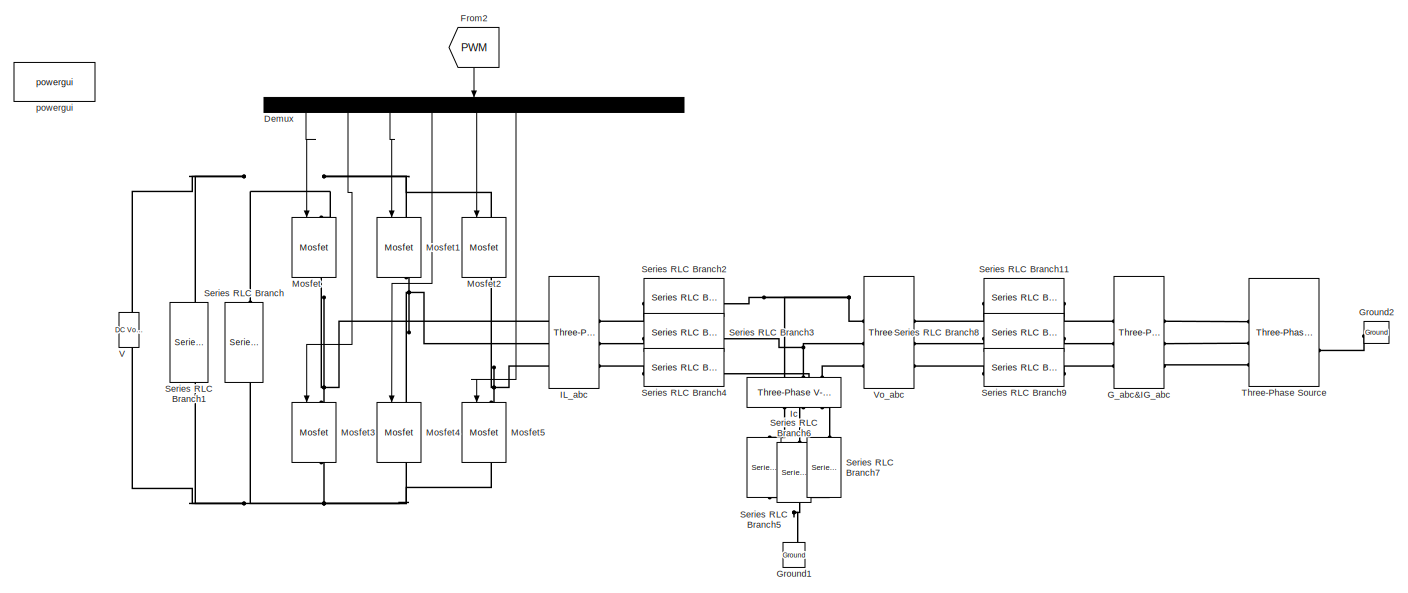
[diagram: root canvas - part 1/3, full width, top band]
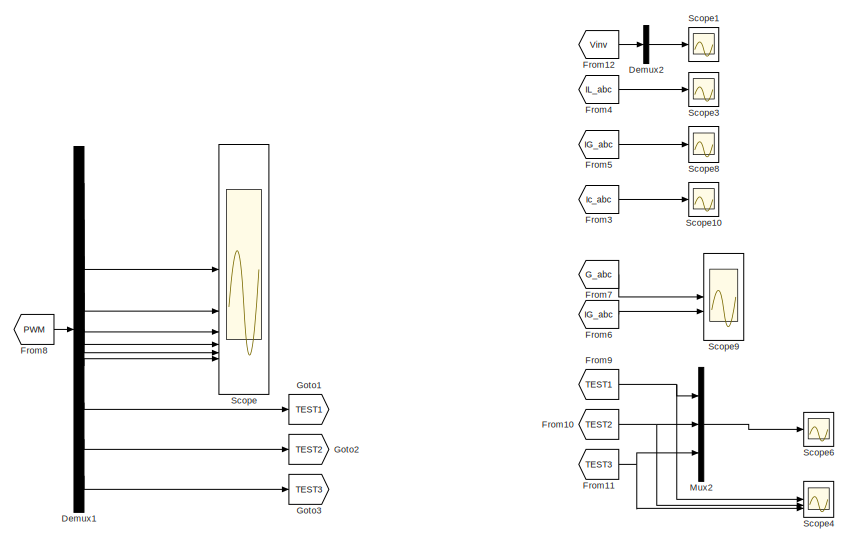
[diagram: root canvas - part 2/3, bottom right region]
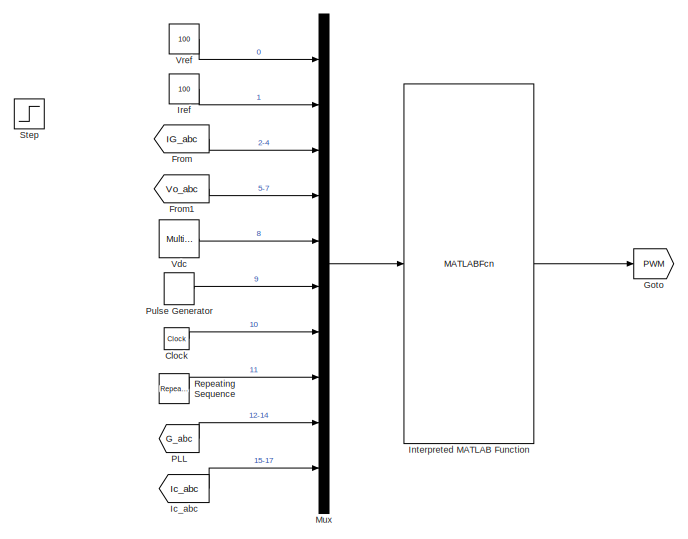
[diagram: root canvas - part 3/3, bottom left region]
MODEL slx_1745cb2871dc
KIND model
CONFIG AbsTol = auto
CONFIG EnableMultiTasking = off
CONFIG FixedStep = 1e-6
CONFIG InitFcn = f = 10e3;\nTs = 1/f;\nVdc = 850;\nL1 = 0.9e-3;\nC = 40e-6;\nR = 0.1;\nL2 = 0.1e-3;\nRC = 0.01;
CONFIG MaxStep = auto
CONFIG MinStep = auto
CONFIG RelTol = 1e-3
CONFIG SampleTimeConstraint = Unconstrained
CONFIG SolverName = FixedStepDiscrete
CONFIG StartTime = 0.0
CONFIG StopTime = 0.2
BLOCK [Clock] Clock
  DisplayTime = on
BLOCK [Demux] Demux
  NameLocation = left
  Outputs = 9
BLOCK [Demux] Demux1
  Outputs = 9
BLOCK [Demux] Demux2
  Outputs = 3
BLOCK [From] From
  GotoTag = IG_abc
  TagVisibility = global
BLOCK [From] From1
  GotoTag = Vo_abc
  TagVisibility = global
BLOCK [From] From10
  GotoTag = TEST2
BLOCK [From] From11
  GotoTag = TEST3
BLOCK [From] From12
  GotoTag = Vinv
  TagVisibility = global
BLOCK [From] From2
  GotoTag = PWM
  NameLocation = left
BLOCK [From] From3
  GotoTag = Ic_abc
  TagVisibility = global
BLOCK [From] From4
  GotoTag = IL_abc
  TagVisibility = global
BLOCK [From] From5
  GotoTag = IG_abc
  TagVisibility = global
BLOCK [From] From6
  GotoTag = IG_abc
  TagVisibility = global
BLOCK [From] From7
  GotoTag = G_abc
  TagVisibility = global
BLOCK [From] From8
  GotoTag = PWM
BLOCK [From] From9
  GotoTag = TEST1
BLOCK [Reference] G_abc&IG_abc  REF=spsThreePhaseVIMeasurementLib/Three-Phase
V-I Measurement
  LibrarySourceBlock = sps_lib/Sensors and Measurements/Three-Phase\nV-I Measurement
  SourceBlock = spsThreePhaseVIMeasurementLib/Three-Phase\nV-I Measurement
  SourceType = Three-Phase VI Measurement
BLOCK [Goto] Goto
  GotoTag = PWM
BLOCK [Goto] Goto1
  GotoTag = TEST1
BLOCK [Goto] Goto2
  GotoTag = TEST2
BLOCK [Goto] Goto3
  GotoTag = TEST3
BLOCK [Reference] Ground1  REF=spsGroundLib/Ground
  LibrarySourceBlock = sps_lib/Utilities/Ground
  NameLocation = right
  SourceBlock = spsGroundLib/Ground
  SourceType = Ground
BLOCK [Reference] Ground2  REF=spsGroundLib/Ground
  LibrarySourceBlock = sps_lib/Utilities/Ground
  NameLocation = top
  SourceBlock = spsGroundLib/Ground
  SourceType = Ground
BLOCK [Reference] IL_abc  REF=spsThreePhaseVIMeasurementLib/Three-Phase
V-I Measurement
  LibrarySourceBlock = sps_lib/Sensors and Measurements/Three-Phase\nV-I Measurement
  SourceBlock = spsThreePhaseVIMeasurementLib/Three-Phase\nV-I Measurement
  SourceType = Three-Phase VI Measurement
BLOCK [Reference] Ic  REF=spsThreePhaseVIMeasurementLib/Three-Phase
V-I Measurement
  LibrarySourceBlock = sps_lib/Sensors and Measurements/Three-Phase\nV-I Measurement
  NameLocation = left
  SourceBlock = spsThreePhaseVIMeasurementLib/Three-Phase\nV-I Measurement
  SourceType = Three-Phase VI Measurement
BLOCK [From] Ic_abc
  GotoTag = Ic_abc
  TagVisibility = global
BLOCK [MATLABFcn] Interpreted MATLAB Function
  MATLABFcn = SPWM_2Closed_loop
  OutputDimensions = 9
BLOCK [Constant] Iref
  Value = 100
BLOCK [Reference] Mosfet  REF=spsMosfetLib/Mosfet
  LibrarySourceBlock = sps_lib/Power Electronics/Mosfet
  NameLocation = left
  SourceBlock = spsMosfetLib/Mosfet
  SourceType = Mosfet
BLOCK [Reference] Mosfet1  REF=spsMosfetLib/Mosfet
  LibrarySourceBlock = sps_lib/Power Electronics/Mosfet
  NameLocation = left
  SourceBlock = spsMosfetLib/Mosfet
  SourceType = Mosfet
BLOCK [Reference] Mosfet2  REF=spsMosfetLib/Mosfet
  LibrarySourceBlock = sps_lib/Power Electronics/Mosfet
  NameLocation = left
  SourceBlock = spsMosfetLib/Mosfet
  SourceType = Mosfet
BLOCK [Reference] Mosfet3  REF=spsMosfetLib/Mosfet
  LibrarySourceBlock = sps_lib/Power Electronics/Mosfet
  NameLocation = left
  SourceBlock = spsMosfetLib/Mosfet
  SourceType = Mosfet
BLOCK [Reference] Mosfet4  REF=spsMosfetLib/Mosfet
  LibrarySourceBlock = sps_lib/Power Electronics/Mosfet
  NameLocation = left
  SourceBlock = spsMosfetLib/Mosfet
  SourceType = Mosfet
BLOCK [Reference] Mosfet5  REF=spsMosfetLib/Mosfet
  LibrarySourceBlock = sps_lib/Power Electronics/Mosfet
  NameLocation = left
  SourceBlock = spsMosfetLib/Mosfet
  SourceType = Mosfet
BLOCK [Mux] Mux
  DisplayOption = bar
  Inputs = 10
BLOCK [Mux] Mux2
  DisplayOption = bar
  Inputs = 3
BLOCK [From] PLL
  GotoTag = G_abc
  TagVisibility = global
BLOCK [DiscretePulseGenerator] Pulse Generator
  Period = Ts
  PulseType = Time based
  PulseWidth = 50
BLOCK [Reference] Repeating Sequence  REF=simulink/Sources/Repeating
Sequence
  SourceBlock = simulink/Sources/Repeating\nSequence
  SourceType = Repeating table
BLOCK [Scope] Scope
  Floating = off
  NumInputPorts = 6
  ScopeSpecificationString = Simulink.scopes.TimeScopeBlockCfg('CurrentConfiguration', extmgr.ConfigurationSet(extmgr.Configuration('Core','General UI',true),extmgr.Configuration('Core','Source UI',true),extmgr.Configuration('Sources','WiredSimulink',true),extmgr.Configuration('Visuals','Time Domain',true,'SerializedDisplays',{struct('MinYLimReal','-0.125','MaxYLimReal','1.125','YLabelReal','','MinYLimMag','0.00000','MaxYLimM...<+4768ch>
BLOCK [Scope] Scope1
  Floating = off
  NumInputPorts = 1
  ScopeSpecificationString = Simulink.scopes.TimeScopeBlockCfg('CurrentConfiguration', extmgr.ConfigurationSet(extmgr.Configuration('Core','General UI',true,'FigureColor',[0 0 0]),extmgr.Configuration('Core','Source UI',true),extmgr.Configuration('Sources','WiredSimulink',true,'DataLoggingVariableName','ScopeData1'),extmgr.Configuration('Visuals','Time Domain',true,'SerializedDisplays',{struct('MinYLimReal','-1062.89834','Max...<+1859ch>
BLOCK [Scope] Scope10
  Floating = off
  NumInputPorts = 1
  ScopeSpecificationString = Simulink.scopes.TimeScopeBlockCfg('CurrentConfiguration', extmgr.ConfigurationSet(extmgr.Configuration('Core','General UI',true,'FigureColor',[0 0 0]),extmgr.Configuration('Core','Source UI',true),extmgr.Configuration('Sources','WiredSimulink',true,'DataLoggingVariableName','ScopeData1'),extmgr.Configuration('Visuals','Time Domain',true,'SerializedDisplays',{struct('MinYLimReal','-71.71214','MaxYL...<+1850ch>
BLOCK [Scope] Scope3
  Floating = off
  NumInputPorts = 1
  ScopeSpecificationString = Simulink.scopes.TimeScopeBlockCfg('CurrentConfiguration', extmgr.ConfigurationSet(extmgr.Configuration('Core','General UI',true,'FigureColor',[0 0 0]),extmgr.Configuration('Core','Source UI',true),extmgr.Configuration('Sources','WiredSimulink',true,'DataLoggingVariableName','ScopeData1'),extmgr.Configuration('Visuals','Time Domain',true,'SerializedDisplays',{struct('MinYLimReal','-132.0115','MaxYL...<+1859ch>
BLOCK [Scope] Scope4
  Floating = off
  NumInputPorts = 3
  ScopeSpecificationString = Simulink.scopes.TimeScopeBlockCfg('CurrentConfiguration', extmgr.ConfigurationSet(extmgr.Configuration('Core','General UI',true,'FigureColor',[0 0 0]),extmgr.Configuration('Core','Source UI',true),extmgr.Configuration('Sources','WiredSimulink',true,'DataLoggingVariableName','ScopeData5'),extmgr.Configuration('Visuals','Time Domain',true,'SerializedDisplays',{struct('MinYLimReal','-233.36249','MaxY...<+3213ch>
BLOCK [Scope] Scope6
  Floating = off
  NumInputPorts = 1
  ScopeSpecificationString = Simulink.scopes.TimeScopeBlockCfg('CurrentConfiguration', extmgr.ConfigurationSet(extmgr.Configuration('Core','General UI',true,'FigureColor',[0 0 0]),extmgr.Configuration('Core','Source UI',true),extmgr.Configuration('Sources','WiredSimulink',true,'DataLoggingVariableName','ScopeData4'),extmgr.Configuration('Visuals','Time Domain',true,'SerializedDisplays',{struct('MinYLimReal','-337.37943','MaxY...<+1861ch>
BLOCK [Scope] Scope8
  Floating = off
  NumInputPorts = 1
  ScopeSpecificationString = Simulink.scopes.TimeScopeBlockCfg('CurrentConfiguration', extmgr.ConfigurationSet(extmgr.Configuration('Core','General UI',true,'FigureColor',[1 1 1]),extmgr.Configuration('Core','Source UI',true),extmgr.Configuration('Sources','WiredSimulink',true,'DataLoggingVariableName','ScopeData2'),extmgr.Configuration('Visuals','Time Domain',true,'SerializedDisplays',{struct('MinYLimReal','-415.54215','MaxY...<+1993ch>
BLOCK [Scope] Scope9
  Floating = off
  NumInputPorts = 2
  ScopeSpecificationString = Simulink.scopes.TimeScopeBlockCfg('CurrentConfiguration', extmgr.ConfigurationSet(extmgr.Configuration('Core','General UI',true,'FigureColor',[0 0 0]),extmgr.Configuration('Core','Source UI',true),extmgr.Configuration('Sources','WiredSimulink',true,'DataLoggingVariableName','ScopeData3'),extmgr.Configuration('Visuals','Time Domain',true,'SerializedDisplays',{struct('MinYLimReal','-387.8781','MaxYL...<+2781ch>
BLOCK [Reference] Series RLC Branch  REF=spsSeriesRLCBranchLib/Series RLC Branch
  LibrarySourceBlock = sps_lib/Passives/Series RLC Branch
  NameLocation = left
  SourceBlock = spsSeriesRLCBranchLib/Series RLC Branch
  SourceType = Series RLC Branch
BLOCK [Reference] Series RLC Branch1  REF=spsSeriesRLCBranchLib/Series RLC Branch
  LibrarySourceBlock = sps_lib/Passives/Series RLC Branch
  NameLocation = left
  SourceBlock = spsSeriesRLCBranchLib/Series RLC Branch
  SourceType = Series RLC Branch
BLOCK [Reference] Series RLC Branch11  REF=spsSeriesRLCBranchLib/Series RLC Branch
  LibrarySourceBlock = sps_lib/Passives/Series RLC Branch
  SourceBlock = spsSeriesRLCBranchLib/Series RLC Branch
  SourceType = Series RLC Branch
BLOCK [Reference] Series RLC Branch2  REF=spsSeriesRLCBranchLib/Series RLC Branch
  LibrarySourceBlock = sps_lib/Passives/Series RLC Branch
  SourceBlock = spsSeriesRLCBranchLib/Series RLC Branch
  SourceType = Series RLC Branch
BLOCK [Reference] Series RLC Branch3  REF=spsSeriesRLCBranchLib/Series RLC Branch
  LibrarySourceBlock = sps_lib/Passives/Series RLC Branch
  SourceBlock = spsSeriesRLCBranchLib/Series RLC Branch
  SourceType = Series RLC Branch
BLOCK [Reference] Series RLC Branch4  REF=spsSeriesRLCBranchLib/Series RLC Branch
  LibrarySourceBlock = sps_lib/Passives/Series RLC Branch
  SourceBlock = spsSeriesRLCBranchLib/Series RLC Branch
  SourceType = Series RLC Branch
BLOCK [Reference] Series RLC Branch5  REF=spsSeriesRLCBranchLib/Series RLC Branch
  LibrarySourceBlock = sps_lib/Passives/Series RLC Branch
  NameLocation = left
  SourceBlock = spsSeriesRLCBranchLib/Series RLC Branch
  SourceType = Series RLC Branch
BLOCK [Reference] Series RLC Branch6  REF=spsSeriesRLCBranchLib/Series RLC Branch
  LibrarySourceBlock = sps_lib/Passives/Series RLC Branch
  NameLocation = left
  SourceBlock = spsSeriesRLCBranchLib/Series RLC Branch
  SourceType = Series RLC Branch
BLOCK [Reference] Series RLC Branch7  REF=spsSeriesRLCBranchLib/Series RLC Branch
  LibrarySourceBlock = sps_lib/Passives/Series RLC Branch
  NameLocation = left
  SourceBlock = spsSeriesRLCBranchLib/Series RLC Branch
  SourceType = Series RLC Branch
BLOCK [Reference] Series RLC Branch8  REF=spsSeriesRLCBranchLib/Series RLC Branch
  LibrarySourceBlock = sps_lib/Passives/Series RLC Branch
  SourceBlock = spsSeriesRLCBranchLib/Series RLC Branch
  SourceType = Series RLC Branch
BLOCK [Reference] Series RLC Branch9  REF=spsSeriesRLCBranchLib/Series RLC Branch
  LibrarySourceBlock = sps_lib/Passives/Series RLC Branch
  SourceBlock = spsSeriesRLCBranchLib/Series RLC Branch
  SourceType = Series RLC Branch
BLOCK [Step] Step
  After = 150
  Before = 100
  SampleTime = 0
  Time = 0.1
BLOCK [Reference] Three-Phase Source  REF=spsThreePhaseSourceLib/Three-Phase Source
  LibrarySourceBlock = sps_lib/Sources/Three-Phase Source
  SourceBlock = spsThreePhaseSourceLib/Three-Phase Source
  SourceType = Three-Phase Source
BLOCK [Reference] V  REF=spsDCVoltageSourceLib/DC Voltage Source
  LibrarySourceBlock = sps_lib/Sources/DC Voltage Source
  NameLocation = left
  SourceBlock = spsDCVoltageSourceLib/DC Voltage Source
  SourceType = DC Voltage Source
BLOCK [Reference] Vdc  REF=spsMultimeterLib/Multimeter
  LibrarySourceBlock = sps_lib/Sensors and Measurements/Multimeter
  SourceBlock = spsMultimeterLib/Multimeter
  SourceType = Multimeter
BLOCK [Reference] Vo_abc  REF=spsThreePhaseVIMeasurementLib/Three-Phase
V-I Measurement
  LibrarySourceBlock = sps_lib/Sensors and Measurements/Three-Phase\nV-I Measurement
  SourceBlock = spsThreePhaseVIMeasurementLib/Three-Phase\nV-I Measurement
  SourceType = Three-Phase VI Measurement
BLOCK [Constant] Vref
  Value = 100
BLOCK [Reference] powergui  REF=sps_lib/powergui
  Priority = 1
  SourceBlock = sps_lib/powergui
  SourceType = PSB option menu block
LINE Clock:1 -> Mux:7
LINE Demux1:1 -> Scope:1
LINE Demux1:2 -> Scope:2
LINE Demux1:3 -> Scope:3
LINE Demux1:4 -> Scope:4
LINE Demux1:5 -> Scope:5
LINE Demux1:6 -> Scope:6
LINE Demux1:7 -> Goto1:1
LINE Demux1:8 -> Goto2:1
LINE Demux1:9 -> Goto3:1
LINE Demux2:2 -> Scope1:1
LINE Demux:1 -> Mosfet:1
LINE Demux:2 -> Mosfet3:1
LINE Demux:3 -> Mosfet1:1
LINE Demux:4 -> Mosfet4:1
LINE Demux:5 -> Mosfet2:1
LINE Demux:6 -> Mosfet5:1
NET From10:1 -> Mux2:2, Scope4:2
NET From11:1 -> Mux2:3, Scope4:3
LINE From12:1 -> Demux2:1
LINE From1:1 -> Mux:4
LINE From2:1 -> Demux:1
LINE From3:1 -> Scope10:1
LINE From4:1 -> Scope3:1
LINE From5:1 -> Scope8:1
LINE From6:1 -> Scope9:2
LINE From7:1 -> Scope9:1
LINE From8:1 -> Demux1:1
NET From9:1 -> Mux2:1, Scope4:1
LINE From:1 -> Mux:3
LINE Ic_abc:1 -> Mux:10
LINE Interpreted MATLAB Function:1 -> Goto:1
LINE Iref:1 -> Mux:2
LINE Mux2:1 -> Scope6:1
LINE Mux:1 -> Interpreted MATLAB Function:1
LINE PLL:1 -> Mux:9
LINE Pulse Generator:1 -> Mux:6
LINE Repeating Sequence:1 -> Mux:8
LINE Vdc:1 -> Mux:5
LINE Vref:1 -> Mux:1
PLINE G_abc&IG_abc:LConn1 -- Series RLC Branch11:RConn1
PLINE G_abc&IG_abc:LConn2 -- Series RLC Branch8:RConn1
PLINE G_abc&IG_abc:LConn3 -- Series RLC Branch9:RConn1
PLINE G_abc&IG_abc:RConn1 -- Three-Phase Source:RConn1
PLINE G_abc&IG_abc:RConn2 -- Three-Phase Source:RConn2
PLINE G_abc&IG_abc:RConn3 -- Three-Phase Source:RConn3
PNET net1: Ground1:LConn1 -- Series RLC Branch5:RConn1 -- Series RLC Branch6:RConn1 -- Series RLC Branch7:RConn1
PLINE Ground2:LConn1 -- Three-Phase Source:LConn1
PNET net2: IL_abc:LConn1 -- Mosfet3:LConn1 -- Mosfet:RConn1
PNET net3: IL_abc:LConn2 -- Mosfet1:RConn1 -- Mosfet4:LConn1
PNET net4: IL_abc:LConn3 -- Mosfet2:RConn1 -- Mosfet5:LConn1
PLINE IL_abc:RConn1 -- Series RLC Branch2:LConn1
PLINE IL_abc:RConn2 -- Series RLC Branch3:LConn1
PLINE IL_abc:RConn3 -- Series RLC Branch4:LConn1
PNET net5: Ic:LConn1 -- Series RLC Branch2:RConn1 -- Vo_abc:LConn1
PNET net6: Ic:LConn2 -- Series RLC Branch3:RConn1 -- Vo_abc:LConn2
PNET net7: Ic:LConn3 -- Series RLC Branch4:RConn1 -- Vo_abc:LConn3
PLINE Ic:RConn1 -- Series RLC Branch5:LConn1
PLINE Ic:RConn2 -- Series RLC Branch6:LConn1
PLINE Ic:RConn3 -- Series RLC Branch7:LConn1
PNET net8: Mosfet1:LConn1 -- Mosfet2:LConn1 -- Mosfet:LConn1 -- Series RLC Branch1:LConn1 -- Series RLC Branch:LConn1 -- V:RConn1
PNET net9: Mosfet3:RConn1 -- Mosfet4:RConn1 -- Mosfet5:RConn1 -- Series RLC Branch1:RConn1 -- Series RLC Branch:RConn1 -- V:LConn1
PLINE Series RLC Branch11:LConn1 -- Vo_abc:RConn1
PLINE Series RLC Branch8:LConn1 -- Vo_abc:RConn2
PLINE Series RLC Branch9:LConn1 -- Vo_abc:RConn3
note: NET lines group one-source signal fan-out (src -> all destinations, sorted); 1:1 wires keep LINE; PNET lines group multi-terminal physical nets as a canonical sorted terminal list (undirected conserving connections); 2-terminal nets keep the pairwise PLINE form
